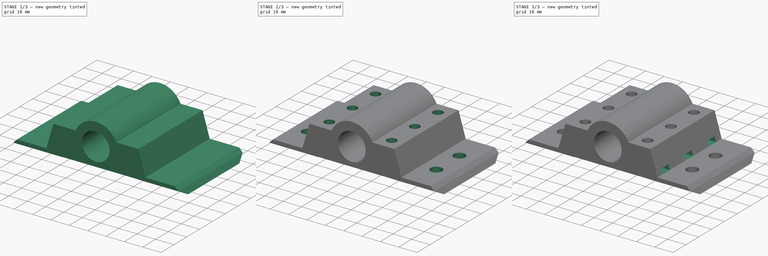
[diagram: build sequence overview — one tinted view per stage of 3, left to right]
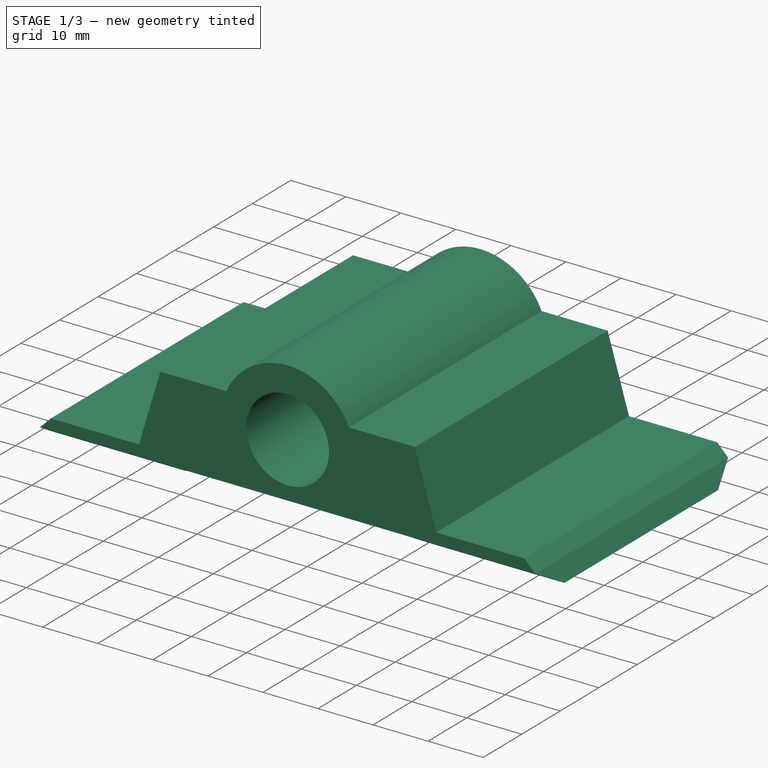
[diagram: stage 1 of 3 — iso view after this stage's code; geometry added in this stage tinted green]
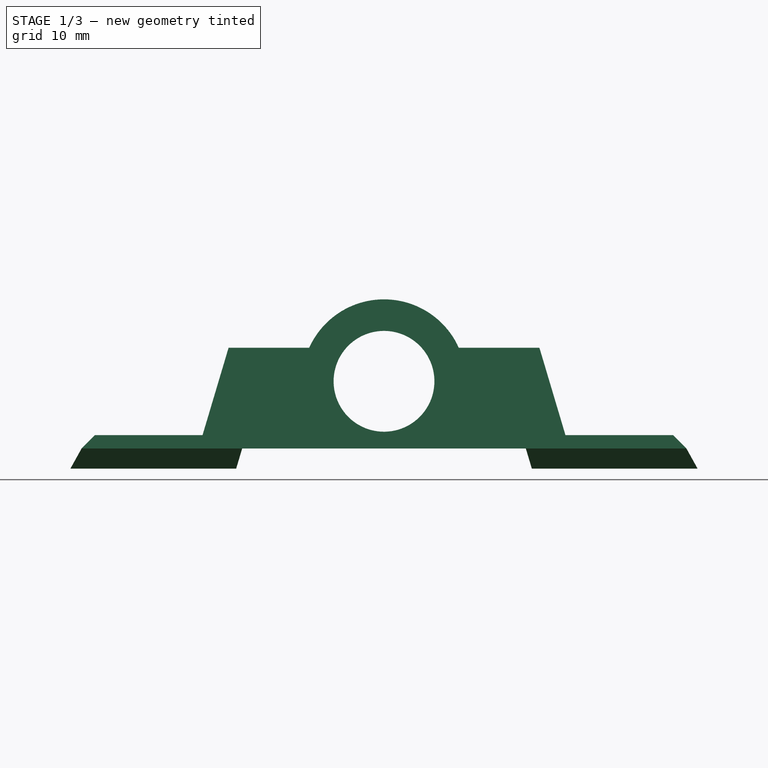
[diagram: stage 1 of 3 — front view after this stage's code; geometry added in this stage tinted green]
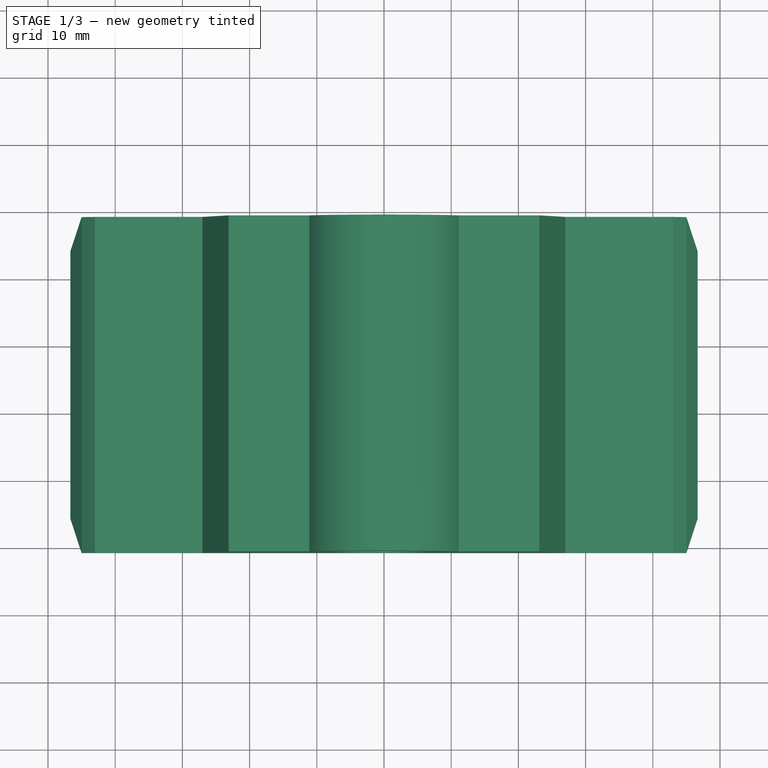
[diagram: stage 1 of 3 — top view after this stage's code; geometry added in this stage tinted green]
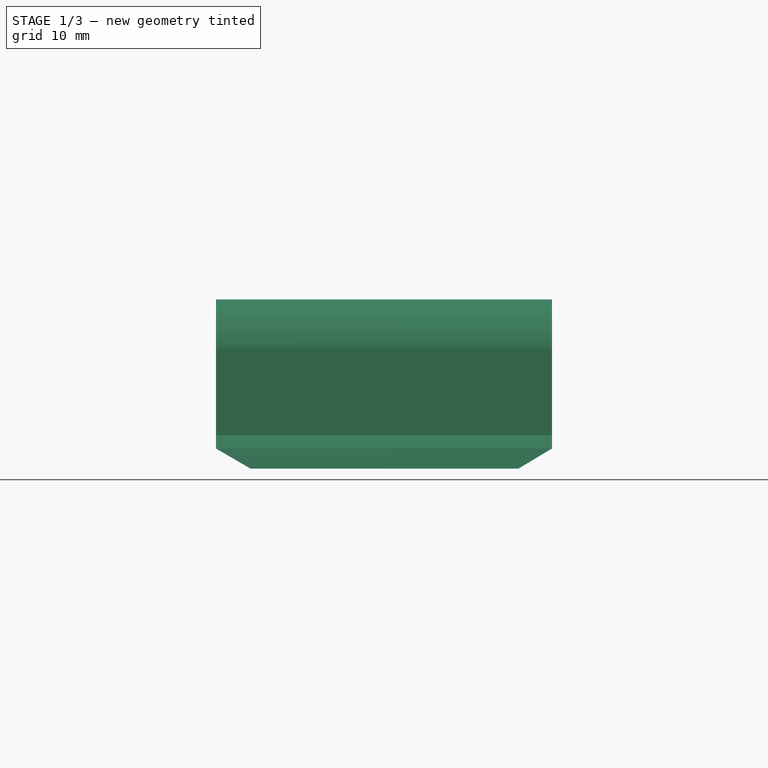
[diagram: stage 1 of 3 — right view after this stage's code; geometry added in this stage tinted green]
FCSTD DOCUMENT  (FreeCAD 0.18R)
Label: toolholder-base
License: All rights reserved
LicenseURL: http://en.wikipedia.org/wiki/All_rights_reserved
objects: Sketcher::SketchObject×7, PartDesign::Pocket×6, PartDesign::Pad×1, PartDesign::Body×1
note: 22 computed .brp shape members not serialized (recipe doc carries the construction recipe); baked Part::Feature solids carry a one-line shape summary decoded from their .brp

FEATURE [Sketcher::SketchObject] Sketch005
  AttachmentOffset = pos=(0,0,41) rot=(0,0,1;0rad)
  MapMode = 5
  Placement = pos=(0,0,41) rot=(0,0,1;0rad)
  Support = -> [XY_Plane]
  sketch-geometry (49):
    g0: LineSegment StartX=174.7 StartY=4.94449 StartZ=0 EndX=171.3 EndY=4.94449 EndZ=0
    g1: LineSegment StartX=171.3 StartY=-0.944486 StartZ=0 EndX=174.7 EndY=-0.944486 EndZ=0
    g2: LineSegment StartX=174.7 StartY=-0.944486 StartZ=0 EndX=176.4 EndY=2 EndZ=0
    g3: LineSegment StartX=176.4 StartY=2 StartZ=0 EndX=174.7 EndY=4.94449 EndZ=0
    g4: Circle [constr] CenterX=173 CenterY=2 CenterZ=0 NormalX=0 NormalY=0 NormalZ=1 AngleXU=0 Radius=3.4
    g5: LineSegment StartX=176.4 StartY=-16 StartZ=0 EndX=174.7 EndY=-13.0555 EndZ=0
    g6: LineSegment StartX=174.7 StartY=-13.0555 StartZ=0 EndX=171.3 EndY=-13.0555 EndZ=0
    g7: LineSegment StartX=171.3 StartY=-18.9445 StartZ=0 EndX=174.7 EndY=-18.9445 EndZ=0
    g8: LineSegment StartX=174.7 StartY=-18.9445 StartZ=0 EndX=176.4 EndY=-16 EndZ=0
    g9: Circle [constr] CenterX=173 CenterY=-16 CenterZ=0 NormalX=0 NormalY=0 NormalZ=1 AngleXU=0 Radius=3.4
    g10: LineSegment StartX=176.4 StartY=-34 StartZ=0 EndX=174.7 EndY=-31.0555 EndZ=0
    g11: LineSegment StartX=174.7 StartY=-31.0555 StartZ=0 EndX=171.3 EndY=-31.0555 EndZ=0
    g12: LineSegment StartX=171.3 StartY=-36.9445 StartZ=0 EndX=174.7 EndY=-36.9445 EndZ=0
    g13: LineSegment StartX=174.7 StartY=-36.9445 StartZ=0 EndX=176.4 EndY=-34 EndZ=0
    g14: Circle [constr] CenterX=173 CenterY=-34 CenterZ=0 NormalX=0 NormalY=0 NormalZ=1 AngleXU=0 Radius=3.4
    g15: LineSegment StartX=203.6 StartY=2 StartZ=0 EndX=205.3 EndY=-0.944486 EndZ=0
    g16: LineSegment StartX=205.3 StartY=-0.944486 StartZ=0 EndX=208.7 EndY=-0.944486 EndZ=0
    g17: LineSegment StartX=208.7 StartY=4.94449 StartZ=0 EndX=205.3 EndY=4.94449 EndZ=0
    g18: LineSegment StartX=205.3 StartY=4.94449 StartZ=0 EndX=203.6 EndY=2 EndZ=0
    g19: Circle [constr] CenterX=207 CenterY=2 CenterZ=0 NormalX=0 NormalY=0 NormalZ=1 AngleXU=0 Radius=3.4
    g20: LineSegment StartX=203.6 StartY=-16 StartZ=0 EndX=205.3 EndY=-18.9445 EndZ=0
    g21: LineSegment StartX=205.3 StartY=-18.9445 StartZ=0 EndX=208.7 EndY=-18.9445 EndZ=0
    g22: LineSegment StartX=208.7 StartY=-13.0555 StartZ=0 EndX=205.3 EndY=-13.0555 EndZ=0
    g23: LineSegment StartX=205.3 StartY=-13.0555 StartZ=0 EndX=203.6 EndY=-16 EndZ=0
    g24: Circle [constr] CenterX=207 CenterY=-16 CenterZ=0 NormalX=0 NormalY=0 NormalZ=1 AngleXU=0 Radius=3.4
    g25: LineSegment StartX=203.6 StartY=-34 StartZ=0 EndX=205.3 EndY=-36.9445 EndZ=0
    g26: LineSegment StartX=205.3 StartY=-36.9445 StartZ=0 EndX=208.7 EndY=-36.9445 EndZ=0
    g27: LineSegment StartX=208.7 StartY=-31.0555 StartZ=0 EndX=205.3 EndY=-31.0555 EndZ=0
    g28: LineSegment StartX=205.3 StartY=-31.0555 StartZ=0 EndX=203.6 EndY=-34 EndZ=0
    g29: Circle [constr] CenterX=207 CenterY=-34 CenterZ=0 NormalX=0 NormalY=0 NormalZ=1 AngleXU=0 Radius=3.4
    g30: GeomPoint X=190 Y=-16 Z=0
    g31: LineSegment StartX=171.3 StartY=4.94449 StartZ=0 EndX=162.8 EndY=4.94449 EndZ=0
    g32: LineSegment StartX=162.8 StartY=4.94449 StartZ=0 EndX=162.8 EndY=-0.944486 EndZ=0
    g33: LineSegment StartX=162.8 StartY=-0.944486 StartZ=0 EndX=171.3 EndY=-0.944486 EndZ=0
    g34: LineSegment StartX=171.3 StartY=-13.0555 StartZ=0 EndX=162.8 EndY=-13.0555 EndZ=0
    g35: LineSegment StartX=162.8 StartY=-13.0555 StartZ=0 EndX=162.8 EndY=-18.9445 EndZ=0
    g36: LineSegment StartX=162.8 StartY=-18.9445 StartZ=0 EndX=171.3 EndY=-18.9445 EndZ=0
    g37: LineSegment StartX=171.3 StartY=-31.0555 StartZ=0 EndX=162.8 EndY=-31.0555 EndZ=0
    g38: LineSegment StartX=171.3 StartY=-36.9445 StartZ=0 EndX=162.8 EndY=-36.9445 EndZ=0
    g39: LineSegment StartX=162.8 StartY=-31.0555 StartZ=0 EndX=162.8 EndY=-36.9445 EndZ=0
    g40: LineSegment StartX=208.7 StartY=4.94449 StartZ=0 EndX=217.2 EndY=4.94449 EndZ=0
    g41: LineSegment StartX=217.2 StartY=4.94449 StartZ=0 EndX=217.2 EndY=-0.944486 EndZ=0
    g42: LineSegment StartX=208.7 StartY=-0.944486 StartZ=0 EndX=217.2 EndY=-0.944486 EndZ=0
    g43: LineSegment StartX=208.7 StartY=-13.0555 StartZ=0 EndX=217.2 EndY=-13.0555 EndZ=0
    g44: LineSegment StartX=208.7 StartY=-18.9445 StartZ=0 EndX=217.2 EndY=-18.9445 EndZ=0
    g45: LineSegment StartX=217.2 StartY=-13.0555 StartZ=0 EndX=217.2 EndY=-18.9445 EndZ=0
    g46: LineSegment StartX=208.7 StartY=-31.0555 StartZ=0 EndX=217.2 EndY=-31.0555 EndZ=0
    g47: LineSegment StartX=208.7 StartY=-36.9445 StartZ=0 EndX=217.2 EndY=-36.9445 EndZ=0
    g48: LineSegment StartX=217.2 StartY=-36.9445 StartZ=0 EndX=217.2 EndY=-31.0555 EndZ=0
  constraints (146):
    c: Coincident(g1,g2)
    c: Coincident(g2,g3)
    c: Coincident(g3,g0)
    c: Equal(g0,g1)
    c: Equal(g0,g2)
    c: Equal(g0,g3)
    c: PointOnObject(g0,g4)
    c: PointOnObject(g1,g4)
    c: PointOnObject(g1,g4)
    c: PointOnObject(g2,g4)
    c: PointOnObject(g3,g4)
    c: Coincident(g5,g6)
    c: Coincident(g7,g8)
    c: Coincident(g8,g5)
    c: Equal(g5,g6)
    c: Equal(g5,g7)
    c: Equal(g5,g8)
    c: PointOnObject(g5,g9)
    c: PointOnObject(g6,g9)
    c: PointOnObject(g7,g9)
    c: PointOnObject(g7,g9)
    c: PointOnObject(g8,g9)
    c: Coincident(g10,g11)
    c: Coincident(g12,g13)
    c: Coincident(g13,g10)
    c: Equal(g10,g11)
    c: Equal(g10,g12)
    c: Equal(g10,g13)
    c: PointOnObject(g10,g14)
    c: PointOnObject(g11,g14)
    c: PointOnObject(g12,g14)
    c: PointOnObject(g12,g14)
    c: PointOnObject(g13,g14)
    c: Coincident(g15,g16)
    c: Coincident(g17,g18)
    c: Coincident(g18,g15)
    c: Equal(g15,g16)
    c: Equal(g15,g17)
    c: Equal(g15,g18)
    c: PointOnObject(g15,g19)
    c: PointOnObject(g16,g19)
    c: PointOnObject(g17,g19)
    c: PointOnObject(g17,g19)
    c: PointOnObject(g18,g19)
    c: Coincident(g20,g21)
    c: Coincident(g22,g23)
    c: Coincident(g23,g20)
    c: Equal(g20,g21)
    c: Equal(g20,g22)
    c: Equal(g20,g23)
    c: PointOnObject(g20,g24)
    c: PointOnObject(g21,g24)
    c: PointOnObject(g22,g24)
    c: PointOnObject(g22,g24)
    c: PointOnObject(g23,g24)
    c: Coincident(g25,g26)
    c: Coincident(g27,g28)
    c: Coincident(g28,g25)
    c: Equal(g25,g26)
    c: Equal(g25,g27)
    c: Equal(g25,g28)
    c: PointOnObject(g25,g29)
    c: PointOnObject(g26,g29)
    c: PointOnObject(g27,g29)
    c: PointOnObject(g27,g29)
    c: PointOnObject(g28,g29)
    c: DistanceX(g-1,g30) = 190
    c: DistanceY(g30,g-1) = 16
    c: DistanceY(g30,g9) = 0
    c: Horizontal(g6)
    c: Horizontal(g11)
    c: Horizontal(g22)
    c: Horizontal(g27)
    c: Horizontal(g0)
    c: Horizontal(g17)
    c: DistanceY(g19,g4) = 0
    c: DistanceY(g24,g9) = 0
    c: DistanceY(g29,g14) = 0
    c: DistanceX(g9,g14) = 0
    c: DistanceX(g9,g4) = 0
    c: DistanceX(g24,g19) = 0
    c: DistanceX(g29,g24) = 0
    c: Diameter(g4) = 6.8
    c: Equal(g19,g4)
    c: Equal(g24,g4)
    c: Equal(g29,g4)
    c: Equal(g14,g4)
    c: Equal(g9,g4)
    c: DistanceX(g9,g30) = 17
    c: DistanceX(g30,g24) = 17
    c: DistanceY(g9,g4) = 18
    c: DistanceY(g14,g9) = 18
    c: Coincident(g31,g0)
    c: Horizontal(g31)
    c: Coincident(g32,g31)
    c: Vertical(g32)
    c: Coincident(g33,g32)
    c: Horizontal(g33)
    c: DistanceX(g31,g4) = 10.2
    c: Horizontal(g1)
    c: Coincident(g1,g33)
    c: Horizontal(g34)
    c: Vertical(g35)
    c: Horizontal(g36)
    c: DistanceX(g34,g32) = 0
    c: Coincident(g34,g35)
    c: Coincident(g35,g36)
    c: Horizontal(g7)
    c: Coincident(g6,g34)
    c: Coincident(g7,g36)
    c: Coincident(g37,g11)
    c: Horizontal(g37)
    c: Horizontal(g38)
    c: Coincident(g39,g37)
    c: Coincident(g39,g38)
    c: Vertical(g39)
    c: DistanceX(g37,g35) = 0
    c: Horizontal(g12)
    c: Coincident(g12,g38)
    c: Horizontal(g40)
    c: Coincident(g41,g40)
    c: Vertical(g41)
    c: Coincident(g42,g16)
    c: Coincident(g42,g41)
    c: Horizontal(g42)
    c: DistanceX(g19,g40) = 10.2
    c: Horizontal(g16)
    c: Coincident(g17,g40)
    c: Horizontal(g43)
    c: Coincident(g44,g21)
    c: Horizontal(g44)
    c: Coincident(g45,g43)
    c: Coincident(g45,g44)
    c: DistanceX(g41,g43) = 0
    c: Horizontal(g21)
    c: Vertical(g45)
    c: Coincident(g22,g43)
    c: Horizontal(g46)
    c: Coincident(g47,g26)
    c: Horizontal(g47)
    c: Coincident(g48,g47)
    c: Coincident(g48,g46)
    c: Vertical(g48)
    c: DistanceX(g44,g46) = 0
    c: Horizontal(g26)
    c: Coincident(g27,g46)
FEATURE [Sketcher::SketchObject] Sketch
  AttachmentOffset = pos=(0,0,143) rot=(0,0,1;0rad)
  MapMode = 5
  Placement = pos=(143,-3.18e-14,3.18e-14) rot=(0.57735,0.57735,0.57735;2.0944rad)
  Support = -> [YZ_Plane]
  sketch-geometry (6):
    g0: LineSegment StartX=4.25 StartY=36 StartZ=0 EndX=9.25 EndY=39 EndZ=0
    g1: LineSegment StartX=-35.6 StartY=36 StartZ=0 EndX=-40.75 EndY=39 EndZ=0
    g2: LineSegment StartX=-40.75 StartY=39 StartZ=0 EndX=-40.75 EndY=36 EndZ=0
    g3: LineSegment StartX=-40.75 StartY=36 StartZ=0 EndX=-35.6 EndY=36 EndZ=0
    g4: LineSegment StartX=9.25 StartY=39 StartZ=0 EndX=9.25 EndY=36 EndZ=0
    g5: LineSegment StartX=4.25 StartY=36 StartZ=0 EndX=9.25 EndY=36 EndZ=0
  constraints (18):
    c: DistanceY(g-1,g0) = 39
    c: DistanceX(g-1,g0) = 9.25
    c: DistanceY(g0,g0) = 3
    c: DistanceY(g1,g0) = 0
    c: DistanceX(g0,g0) = 5
    c: DistanceX(g1,g1) = 5.15
    c: Coincident(g2,g1)
    c: Vertical(g2)
    c: Coincident(g3,g2)
    c: Horizontal(g3)
    c: DistanceX(g2,g-1) = 40.75
    c: Coincident(g4,g0)
    c: Vertical(g4)
    c: Coincident(g5,g4)
    c: Horizontal(g5)
    c: DistanceY(g1,g0) = 0
    c: Coincident(g1,g3)
    c: Coincident(g0,g5)
FEATURE [Sketcher::SketchObject] Sketch006
  AttachmentOffset = pos=(0,0,-26.5) rot=(0,0,1;0rad)
  MapMode = 5
  Placement = pos=(0,26.5,5.9e-15) rot=(1,0,0;1.5708rad)
  Support = -> [XZ_Plane]
  sketch-geometry (5):
    g0: LineSegment StartX=145 StartY=62 StartZ=0 EndX=235 EndY=62 EndZ=0
    g1: LineSegment StartX=235 StartY=62 StartZ=0 EndX=235 EndY=47 EndZ=0
    g2: LineSegment StartX=235 StartY=47 StartZ=0 EndX=145 EndY=47 EndZ=0
    g3: LineSegment StartX=145 StartY=47 StartZ=0 EndX=145 EndY=62 EndZ=0
    g4: GeomPoint X=190 Y=27 Z=0
  constraints (14):
    c: Coincident(g0,g1)
    c: Coincident(g1,g2)
    c: Coincident(g2,g3)
    c: Coincident(g3,g0)
    c: Horizontal(g0)
    c: Horizontal(g2)
    c: Vertical(g1)
    c: Vertical(g3)
    c: DistanceX(g-1,g4) = 190
    c: DistanceY(g-1,g4) = 27
    c: DistanceX(g0,g0) = 90
    c: DistanceX(g2,g4) = 45
    c: DistanceY(g4,g1) = 20
    c: DistanceY(g3,g3) = 15
FEATURE [Sketcher::SketchObject] Sketch001
  AttachmentOffset = pos=(0,0,-9.25) rot=(0,0,1;0rad)
  MapMode = 5
  Placement = pos=(0,9.25,2.1e-15) rot=(1,0,0;1.5708rad)
  Support = -> [XZ_Plane]
  sketch-geometry (20):
    g0: LineSegment StartX=168.894 StartY=39 StartZ=0 EndX=211.106 EndY=39 EndZ=0
    g1: GeomPoint X=190 Y=27 Z=0
    g2: LineSegment StartX=145 StartY=39 StartZ=0 EndX=143.333 EndY=36 EndZ=0
    g3: LineSegment StartX=143.333 StartY=36 StartZ=0 EndX=168 EndY=36 EndZ=0
    g4: GeomPoint X=155 Y=27 Z=0
    g5: LineSegment StartX=168.894 StartY=39 StartZ=0 EndX=168 EndY=36 EndZ=0
    g6: Circle CenterX=190 CenterY=49 CenterZ=0 NormalX=0 NormalY=0 NormalZ=1 AngleXU=0 Radius=7.5
    g7: LineSegment StartX=217 StartY=41 StartZ=0 EndX=233 EndY=41 EndZ=0
    g8: LineSegment StartX=163 StartY=41 StartZ=0 EndX=147 EndY=41 EndZ=0
    g9: LineSegment StartX=145 StartY=39 StartZ=0 EndX=147 EndY=41 EndZ=0
    g10: LineSegment StartX=235 StartY=39 StartZ=0 EndX=236.667 EndY=36 EndZ=0
    g11: LineSegment StartX=212 StartY=36 StartZ=0 EndX=211.106 EndY=39 EndZ=0
    g12: GeomPoint X=225 Y=27 Z=0
    g13: LineSegment StartX=233 StartY=41 StartZ=0 EndX=235 EndY=39 EndZ=0
    g14: LineSegment StartX=212 StartY=36 StartZ=0 EndX=236.667 EndY=36 EndZ=0
    g15: LineSegment StartX=166.875 StartY=54 StartZ=0 EndX=178.875 EndY=54 EndZ=0
    g16: LineSegment StartX=166.875 StartY=54 StartZ=0 EndX=163 EndY=41 EndZ=0
    g17: LineSegment StartX=201.125 StartY=54 StartZ=0 EndX=213.125 EndY=54 EndZ=0
    g18: LineSegment StartX=213.125 StartY=54 StartZ=0 EndX=217 EndY=41 EndZ=0
    g19: ArcOfCircle CenterX=190 CenterY=49 CenterZ=0 NormalX=0 NormalY=0 NormalZ=1 AngleXU=0 Radius=12.197 StartAngle=0.422387 EndAngle=2.71921
  constraints (57):
    c: Horizontal(g0)
    c: DistanceX(g-1,g1) = 190
    c: DistanceY(g-1,g1) = 27
    c: DistanceX(g2,g1) = 45
    c: Coincident(g3,g2)
    c: Horizontal(g3)
    c: DistanceY(g1,g2) = 12
    c: DistanceY(g2,g2) = 3
    c: DistanceY(g1,g4) = 0
    c: DistanceX(g4,g1) = 35
    c: Coincident(g5,g3)
    c: Diameter(g6) = 15
    c: DistanceX(g6,g1) = 0
    c: Horizontal(g7)
    c: DistanceY(g7,g8) = 0
    c: Horizontal(g8)
    c: Coincident(g0,g5)
    c: DistanceX(g4,g8) = 8
    c: Coincident(g9,g2)
    c: Coincident(g8,g9)
    c: Angle(g9,g8) = 2.35619
    c: DistanceX(g2,g4) = 11.667
    c: DistanceY(g0,g2) = 0
    c: DistanceY(g10,g2) = 0
    c: DistanceY(g12,g1) = 0
    c: DistanceX(g1,g12) = 35
    c: Coincident(g13,g7)
    c: Coincident(g13,g10)
    c: Coincident(g0,g11)
    c: DistanceY(g10,g0) = 0
    c: DistanceX(g12,g10) = 11.667
    c: DistanceY(g10,g7) = 2
    c: DistanceY(g11,g10) = 0
    c: DistanceX(g7,g10) = 2
    c: Coincident(g14,g11)
    c: Coincident(g14,g10)
    c: Equal(g3,g14)
    c: DistanceY(g1,g6) = 22
    c: DistanceX(g7,g12) = 8
    c: Horizontal(g15)
    c: DistanceX(g15,g15) = 12
    c: DistanceX(g15,g1) = 11.125
    c: Coincident(g16,g15)
    c: Coincident(g16,g8)
    c: Horizontal(g17)
    c: DistanceY(g17,g15) = 0
    c: DistanceX(g17,g17) = 12
    c: Coincident(g18,g7)
    c: Coincident(g19,g15)
    c: Coincident(g19,g17)
    c: Coincident(g6,g19)
    c: Parallel(g16,g5)
    c: Parallel(g18,g11)
    c: Coincident(g17,g18)
    c: DistanceX(g4,g3) = 13
    c: DistanceX(g1,g10) = 45
    c: DistanceY(g6,g15) = 5
FEATURE [PartDesign::Pad] Pad
  Length = 50
  Length2 = 100
  Placement = pos=(0,0,0) rot=(1,0,0;1.5708rad)
  Profile = -> Sketch001
  Type = 0
FEATURE [Sketcher::SketchObject] Sketch003
  MapMode = 5
  Support = -> [XY_Plane]
  sketch-geometry (7):
    g0: GeomPoint X=190 Y=-16 Z=0
    g1: Circle CenterX=173 CenterY=2 CenterZ=0 NormalX=0 NormalY=0 NormalZ=1 AngleXU=0 Radius=1.7
    g2: Circle CenterX=173 CenterY=-16 CenterZ=0 NormalX=0 NormalY=0 NormalZ=1 AngleXU=0 Radius=1.7
    g3: Circle CenterX=173 CenterY=-34 CenterZ=0 NormalX=0 NormalY=0 NormalZ=1 AngleXU=0 Radius=1.7
    g4: Circle CenterX=207 CenterY=2 CenterZ=0 NormalX=0 NormalY=0 NormalZ=1 AngleXU=0 Radius=1.7
    g5: Circle CenterX=207 CenterY=-16 CenterZ=0 NormalX=0 NormalY=0 NormalZ=1 AngleXU=0 Radius=1.7
    g6: Circle CenterX=207 CenterY=-34 CenterZ=0 NormalX=0 NormalY=0 NormalZ=1 AngleXU=0 Radius=1.7
  constraints (20):
    c: DistanceX(g-1,g0) = 190
    c: DistanceY(g0,g-1) = 16
    c: Diameter(g1) = 3.4
    c: Equal(g1,g4)
    c: Equal(g1,g2)
    c: Equal(g1,g5)
    c: Equal(g1,g3)
    c: Equal(g1,g6)
    c: DistanceY(g1,g4) = 0
    c: DistanceY(g5,g2) = 0
    c: DistanceY(g3,g6) = 0
    c: DistanceX(g1,g2) = 0
    c: DistanceX(g3,g2) = 0
    c: DistanceX(g5,g6) = 0
    c: DistanceX(g5,g4) = 0
    c: DistanceY(g0,g2) = 0
    c: DistanceY(g2,g1) = 18
    c: DistanceY(g3,g2) = 18
    c: DistanceX(g2,g0) = 17
    c: DistanceX(g0,g5) = 17
FEATURE [PartDesign::Pocket] Pocket
  BaseFeature = -> Pad
  Length = 5
  Length2 = 100
  Placement = pos=(0,0,0) rot=(1,0,0;1.5708rad)
  Profile = -> Sketch
  Reversed = true
  Type = 1
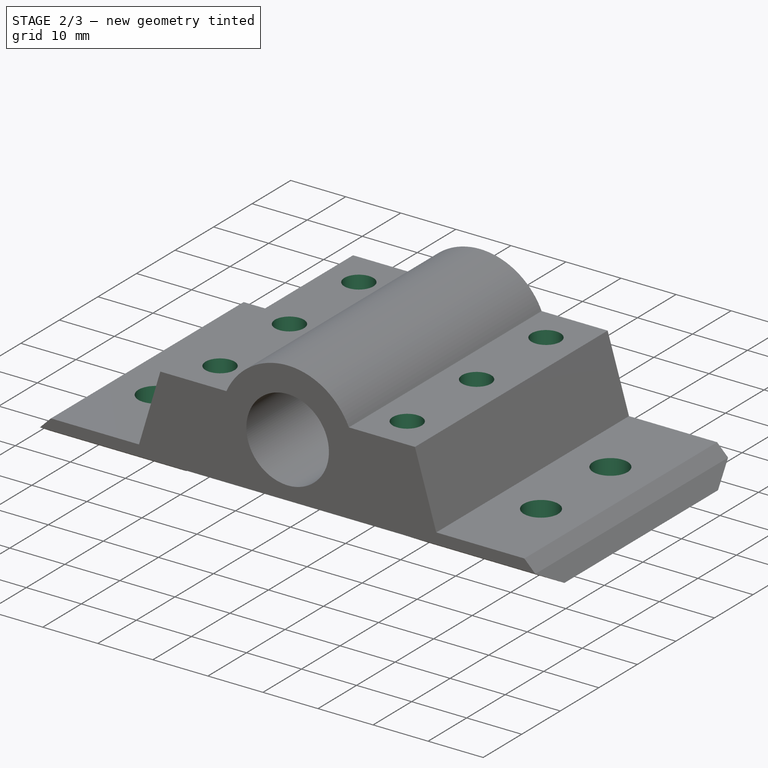
[diagram: stage 2 of 3 — iso view after this stage's code; geometry added in this stage tinted green]
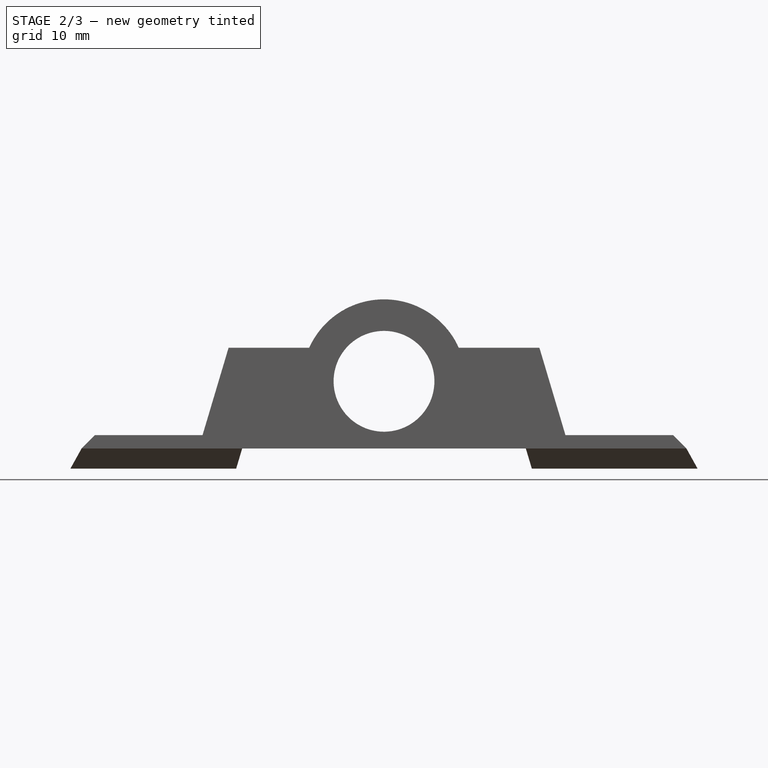
[diagram: stage 2 of 3 — front view after this stage's code; geometry added in this stage tinted green]
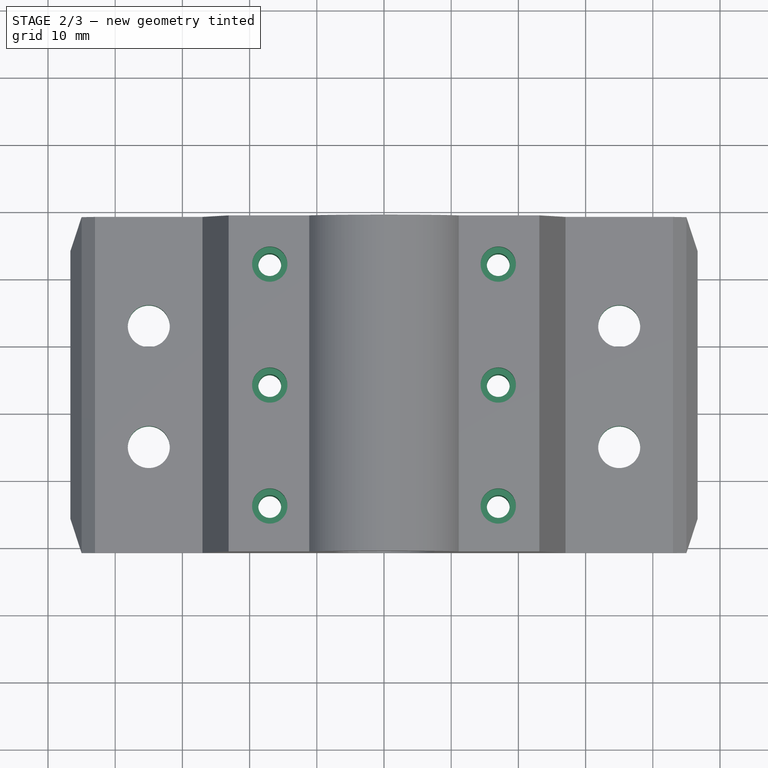
[diagram: stage 2 of 3 — top view after this stage's code; geometry added in this stage tinted green]
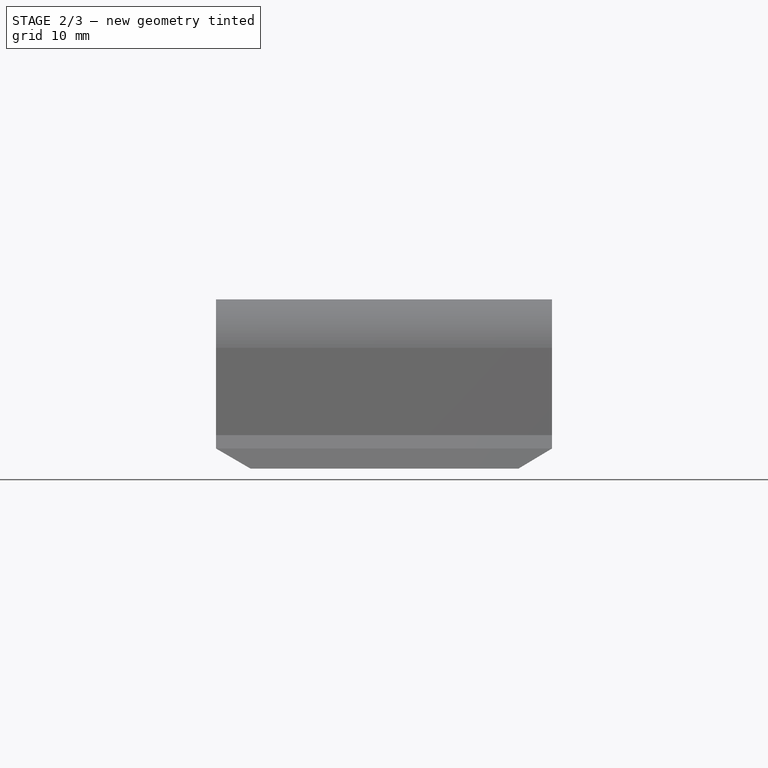
[diagram: stage 2 of 3 — right view after this stage's code; geometry added in this stage tinted green]
FEATURE [Sketcher::SketchObject] Sketch002
  MapMode = 5
  Support = -> [XY_Plane]
  sketch-geometry (5):
    g0: GeomPoint X=190 Y=-16 Z=0
    g1: Circle CenterX=155 CenterY=-7 CenterZ=0 NormalX=0 NormalY=0 NormalZ=1 AngleXU=0 Radius=3.125
    g2: Circle CenterX=155 CenterY=-25 CenterZ=0 NormalX=0 NormalY=0 NormalZ=1 AngleXU=0 Radius=3.125
    g3: Circle CenterX=225 CenterY=-7 CenterZ=0 NormalX=0 NormalY=0 NormalZ=1 AngleXU=0 Radius=3.125
    g4: Circle CenterX=225 CenterY=-25 CenterZ=0 NormalX=0 NormalY=0 NormalZ=1 AngleXU=0 Radius=3.125
  constraints (14):
    c: DistanceX(g-1,g0) = 190
    c: DistanceY(g0,g-1) = 16
    c: DistanceY(g1,g3) = 0
    c: DistanceY(g4,g2) = 0
    c: DistanceX(g2,g1) = 0
    c: DistanceX(g4,g3) = 0
    c: DistanceX(g1,g3) = 70
    c: DistanceX(g1,g0) = 35
    c: Diameter(g1) = 6.25
    c: Equal(g1,g2)
    c: Equal(g1,g3)
    c: Equal(g1,g4)
    c: DistanceY(g2,g1) = 18
    c: DistanceY(g0,g1) = 9
FEATURE [PartDesign::Pocket] Pocket001
  BaseFeature = -> Pocket
  Length = 5
  Length2 = 100
  Placement = pos=(0,0,0) rot=(1,0,0;1.5708rad)
  Profile = -> Sketch002
  Reversed = true
  Type = 1
FEATURE [PartDesign::Pocket] Pocket002
  BaseFeature = -> Pocket001
  Length = 5
  Length2 = 100
  Placement = pos=(0,0,0) rot=(1,0,0;1.5708rad)
  Profile = -> Sketch003
  Reversed = true
  Type = 1
FEATURE [Sketcher::SketchObject] Sketch004
  AttachmentOffset = pos=(0,0,54) rot=(0,0,1;0rad)
  MapMode = 5
  Placement = pos=(0,0,54) rot=(0,0,1;0rad)
  Support = -> [XY_Plane]
  sketch-geometry (7):
    g0: GeomPoint X=190 Y=-16 Z=0
    g1: Circle CenterX=173 CenterY=2 CenterZ=0 NormalX=0 NormalY=0 NormalZ=1 AngleXU=0 Radius=2.625
    g2: Circle CenterX=207 CenterY=-16 CenterZ=0 NormalX=0 NormalY=0 NormalZ=1 AngleXU=0 Radius=2.625
    g3: Circle CenterX=173 CenterY=-16 CenterZ=0 NormalX=0 NormalY=0 NormalZ=1 AngleXU=0 Radius=2.625
    g4: Circle CenterX=173 CenterY=-34 CenterZ=0 NormalX=0 NormalY=0 NormalZ=1 AngleXU=0 Radius=2.625
    g5: Circle CenterX=207 CenterY=-34 CenterZ=0 NormalX=0 NormalY=0 NormalZ=1 AngleXU=0 Radius=2.625
    g6: Circle CenterX=207 CenterY=2 CenterZ=0 NormalX=0 NormalY=0 NormalZ=1 AngleXU=0 Radius=2.625
  constraints (20):
    c: DistanceX(g-1,g0) = 190
    c: DistanceY(g0,g-1) = 16
    c: DistanceY(g3,g2) = 0
    c: DistanceY(g4,g5) = 0
    c: DistanceX(g1,g3) = 0
    c: DistanceX(g3,g4) = 0
    c: DistanceX(g5,g2) = 0
    c: Diameter(g1) = 5.25
    c: Equal(g1,g3)
    c: Equal(g1,g2)
    c: Equal(g1,g4)
    c: Equal(g1,g5)
    c: DistanceY(g3,g0) = 0
    c: DistanceX(g3,g0) = 17
    c: DistanceY(g4,g3) = 18
    c: DistanceX(g0,g2) = 17
    c: DistanceY(g3,g1) = 18
    c: Equal(g1,g6)
    c: DistanceY(g6,g1) = 0
    c: DistanceX(g2,g6) = 0
FEATURE [PartDesign::Pocket] Pocket003
  BaseFeature = -> Pocket002
  Length = 4
  Length2 = 100
  Placement = pos=(0,0,0) rot=(1,0,0;1.5708rad)
  Profile = -> Sketch004
  Type = 0
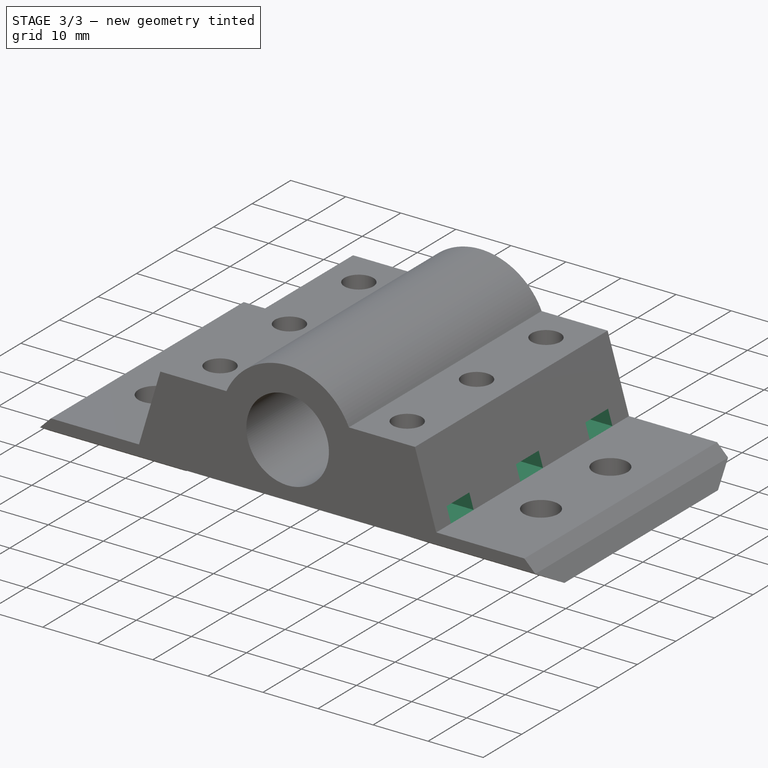
[diagram: stage 3 of 3 — iso view after this stage's code; geometry added in this stage tinted green]
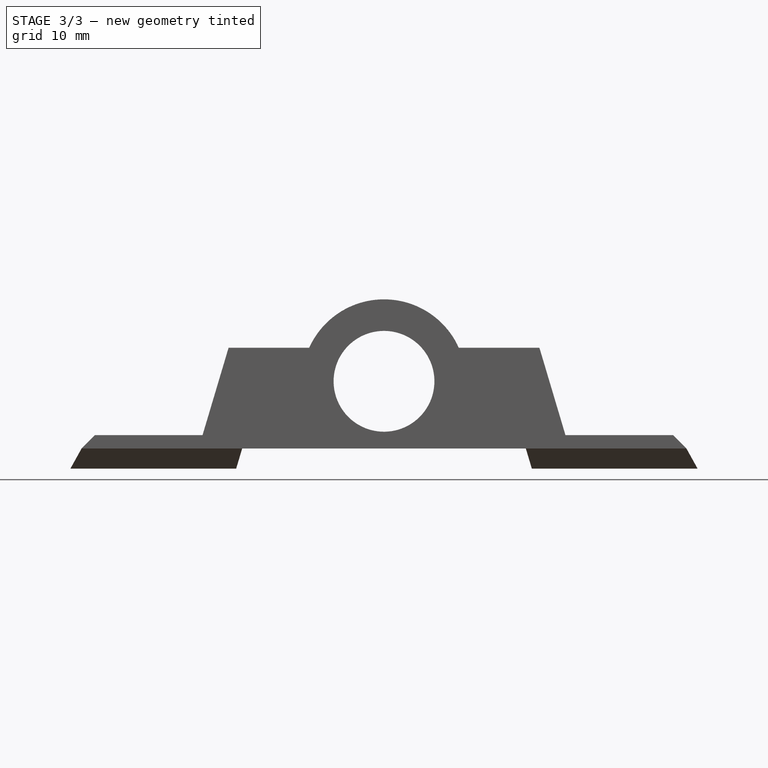
[diagram: stage 3 of 3 — front view after this stage's code; geometry added in this stage tinted green]
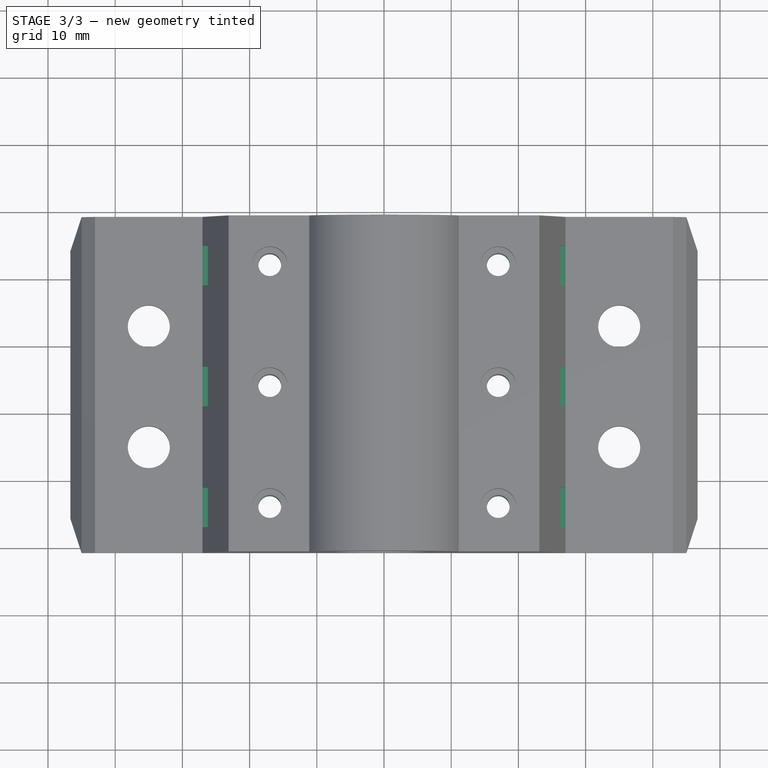
[diagram: stage 3 of 3 — top view after this stage's code; geometry added in this stage tinted green]
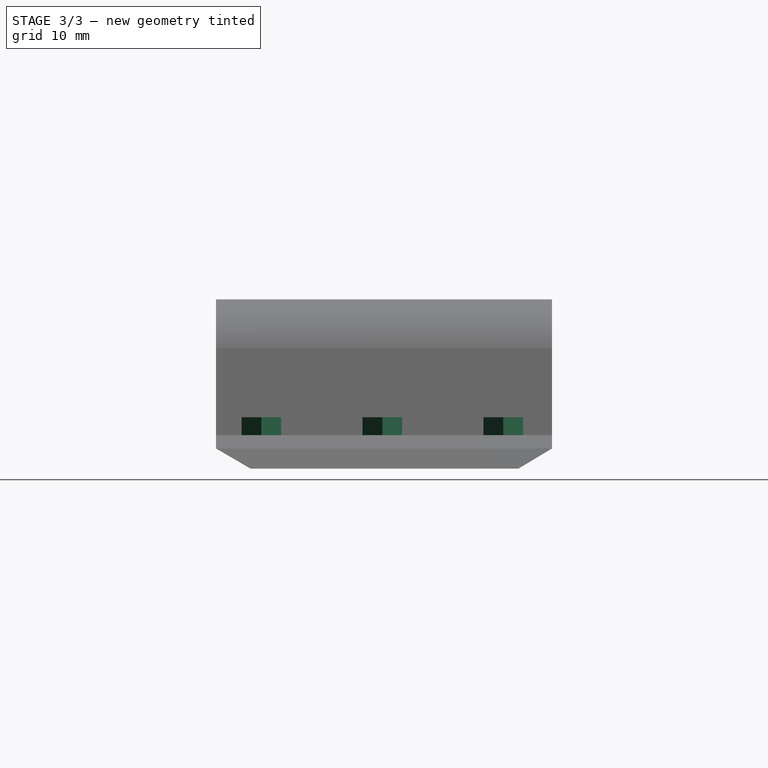
[diagram: stage 3 of 3 — right view after this stage's code; geometry added in this stage tinted green]
FEATURE [PartDesign::Pocket] Pocket004
  BaseFeature = -> Pocket003
  Length = 2.65
  Length2 = 100
  Placement = pos=(0,0,0) rot=(1,0,0;1.5708rad)
  Profile = -> Sketch005
  Reversed = true
  Type = 0
FEATURE [PartDesign::Pocket] Pocket005
  BaseFeature = -> Pocket004
  Length = 5
  Length2 = 100
  Placement = pos=(0,0,0) rot=(1,0,0;1.5708rad)
  Profile = -> Sketch006
  Reversed = true
  Type = 0
FEATURE [PartDesign::Body] Body
  Group = -> [Sketch001,Pad,Sketch,Pocket,Sketch002,Pocket001,Sketch003,Pocket002,Sketch004,Pocket003,Sketch005,Pocket004,Sketch006,Pocket005]
  Origin = -> Origin
  Tip = -> Pocket005
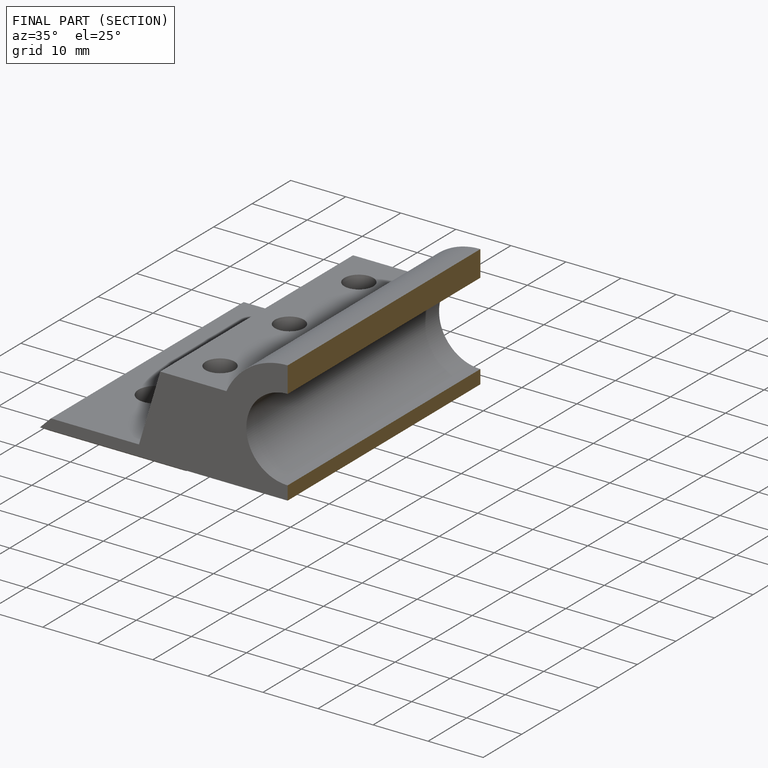
[diagram: finished part — half-section view (interior)]
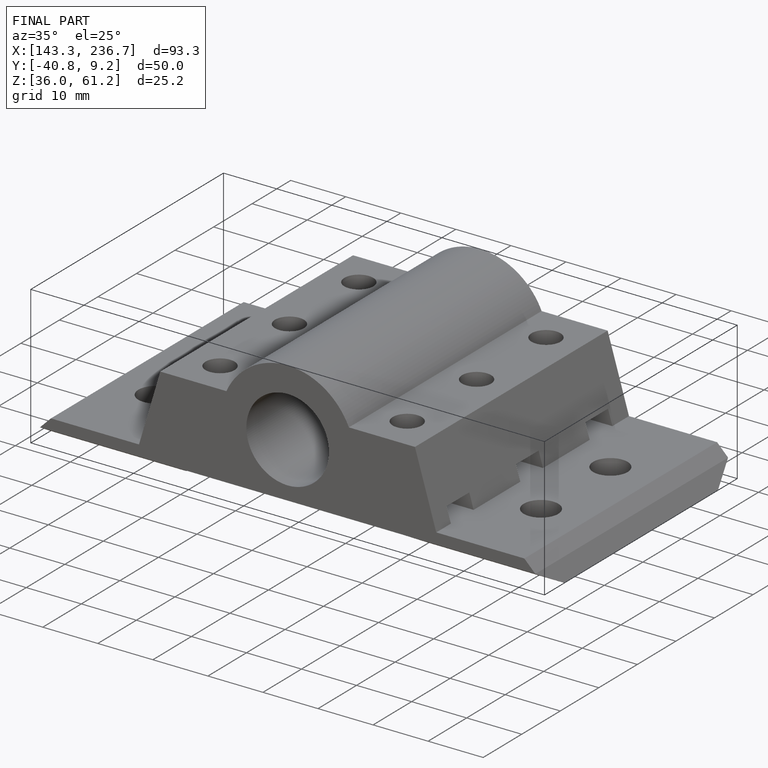
[diagram: finished part — iso view with bounding-box wireframe]
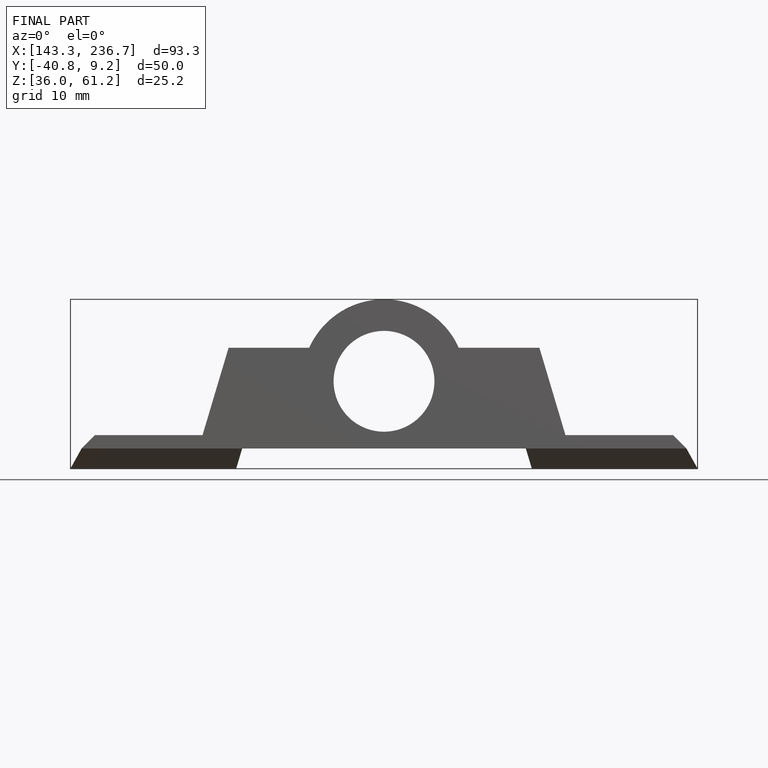
[diagram: finished part — front view with bounding-box wireframe]
